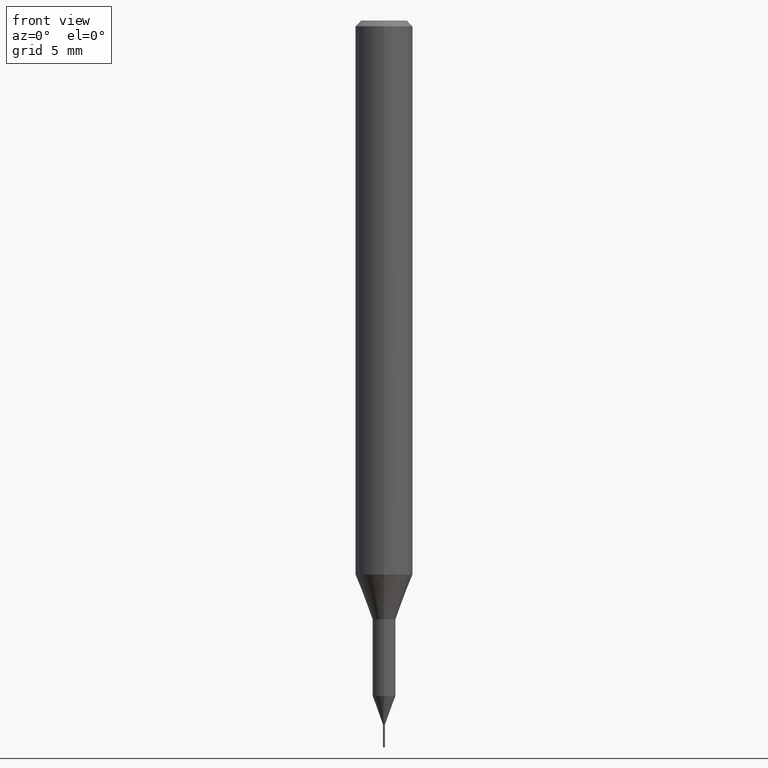
[diagram: clean part render]
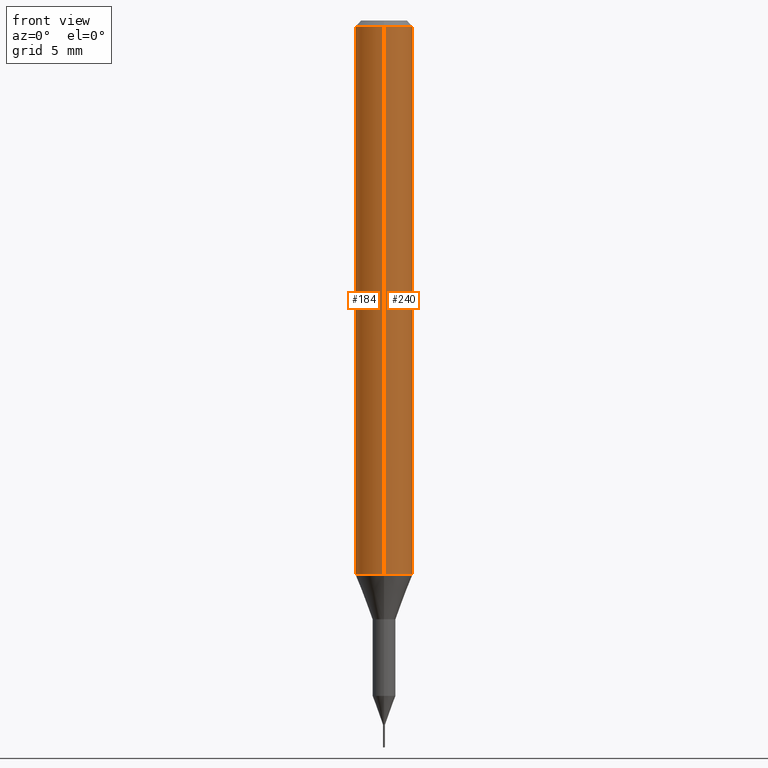
[diagram: same view with one multi-face feature highlighted, each face labeled with its STEP entity id]
A machine part, front view. The highlighted faces form ONE feature: a constant-radius fillet chain: 2 tangent blend faces with common blend radius 1.5 mm. The faces share edges in the B-rep.
Their STEP definitions:
[1] entity #184 (Cylinder):
#134=VERTEX_POINT('',#314);
#138=EDGE_CURVE('',#134,#172,#319,.T.);
#166=EDGE_CURVE('',#214,#172,#351,.T.);
#172=VERTEX_POINT('',#359);
#174=EDGE_CURVE('',#214,#222,#361,.T.);
#184=ADVANCED_FACE('',(#372),#373,.T.);
#200=EDGE_CURVE('',#222,#134,#390,.T.);
#214=VERTEX_POINT('',#406);
#222=VERTEX_POINT('',#415);
#314=CARTESIAN_POINT('',(0.0,1.5,-0.300000000000001));
#319=LINE('',#520,#521);
#351=CIRCLE('',#560,1.5);
#359=CARTESIAN_POINT('',(0.0,1.5,-28.955));
#361=LINE('',#571,#572);
#372=FACE_OUTER_BOUND('',#585,.T.);
#373=CYLINDRICAL_SURFACE('',#586,1.5);
#390=CIRCLE('',#611,1.5);
#406=CARTESIAN_POINT('',(1.83690953073357E-016,-1.5,-28.955));
#415=CARTESIAN_POINT('',(1.83690953073357E-016,-1.5,-0.300000000000001));
#520=CARTESIAN_POINT('',(-1.83690953073357E-016,1.5,-14.6275));
#521=VECTOR('',#752,1.0);
#560=AXIS2_PLACEMENT_3D('',#788,#789,#790);
#571=CARTESIAN_POINT('',(1.83690953073357E-016,-1.5,-14.6275));
#572=VECTOR('',#807,1.0);
#585=EDGE_LOOP('',(#817,#818,#819,#820));
#586=AXIS2_PLACEMENT_3D('',#821,#822,#823);
#611=AXIS2_PLACEMENT_3D('',#843,#844,#845);
#752=DIRECTION('',(0.0,0.0,-1.0));
#788=CARTESIAN_POINT('',(0.0,0.0,-28.955));
#789=DIRECTION('',(0.0,0.0,-1.0));
#790=DIRECTION('',(0.0,1.0,0.0));
#807=DIRECTION('',(-0.0,-0.0,1.0));
#817=ORIENTED_EDGE('',*,*,#138,.T.);
#818=ORIENTED_EDGE('',*,*,#166,.F.);
#819=ORIENTED_EDGE('',*,*,#174,.T.);
#820=ORIENTED_EDGE('',*,*,#200,.T.);
#821=CARTESIAN_POINT('',(0.0,0.0,-14.6275));
#822=DIRECTION('',(-0.0,-0.0,1.0));
#823=DIRECTION('',(0.0,1.0,0.0));
#843=CARTESIAN_POINT('',(0.0,0.0,-0.300000000000001));
#844=DIRECTION('',(0.0,0.0,-1.0));
#845=DIRECTION('',(0.0,1.0,0.0));
[2] entity #240 (Cylinder):
#120=EDGE_CURVE('',#172,#214,#297,.T.);
#134=VERTEX_POINT('',#314);
#138=EDGE_CURVE('',#134,#172,#319,.T.);
#162=EDGE_CURVE('',#134,#222,#347,.T.);
#172=VERTEX_POINT('',#359);
#174=EDGE_CURVE('',#214,#222,#361,.T.);
#214=VERTEX_POINT('',#406);
#222=VERTEX_POINT('',#415);
#240=ADVANCED_FACE('',(#433),#434,.T.);
#297=CIRCLE('',#492,1.5);
#314=CARTESIAN_POINT('',(0.0,1.5,-0.300000000000001));
#319=LINE('',#520,#521);
#347=CIRCLE('',#554,1.5);
#359=CARTESIAN_POINT('',(0.0,1.5,-28.955));
#361=LINE('',#571,#572);
#406=CARTESIAN_POINT('',(1.83690953073357E-016,-1.5,-28.955));
#415=CARTESIAN_POINT('',(1.83690953073357E-016,-1.5,-0.300000000000001));
#433=FACE_OUTER_BOUND('',#666,.T.);
#434=CYLINDRICAL_SURFACE('',#667,1.5);
#492=AXIS2_PLACEMENT_3D('',#714,#715,#716);
#520=CARTESIAN_POINT('',(-1.83690953073357E-016,1.5,-14.6275));
#521=VECTOR('',#752,1.0);
#554=AXIS2_PLACEMENT_3D('',#782,#783,#784);
#571=CARTESIAN_POINT('',(1.83690953073357E-016,-1.5,-14.6275));
#572=VECTOR('',#807,1.0);
#666=EDGE_LOOP('',(#886,#887,#888,#889));
#667=AXIS2_PLACEMENT_3D('',#890,#891,#892);
#714=CARTESIAN_POINT('',(0.0,0.0,-28.955));
#715=DIRECTION('',(0.0,0.0,-1.0));
#716=DIRECTION('',(0.0,1.0,0.0));
#752=DIRECTION('',(0.0,0.0,-1.0));
#782=CARTESIAN_POINT('',(0.0,0.0,-0.300000000000001));
#783=DIRECTION('',(0.0,0.0,-1.0));
#784=DIRECTION('',(0.0,1.0,0.0));
#807=DIRECTION('',(-0.0,-0.0,1.0));
#886=ORIENTED_EDGE('',*,*,#138,.F.);
#887=ORIENTED_EDGE('',*,*,#162,.T.);
#888=ORIENTED_EDGE('',*,*,#174,.F.);
#889=ORIENTED_EDGE('',*,*,#120,.F.);
#890=CARTESIAN_POINT('',(0.0,0.0,-14.6275));
#891=DIRECTION('',(-0.0,-0.0,1.0));
#892=DIRECTION('',(0.0,1.0,0.0));